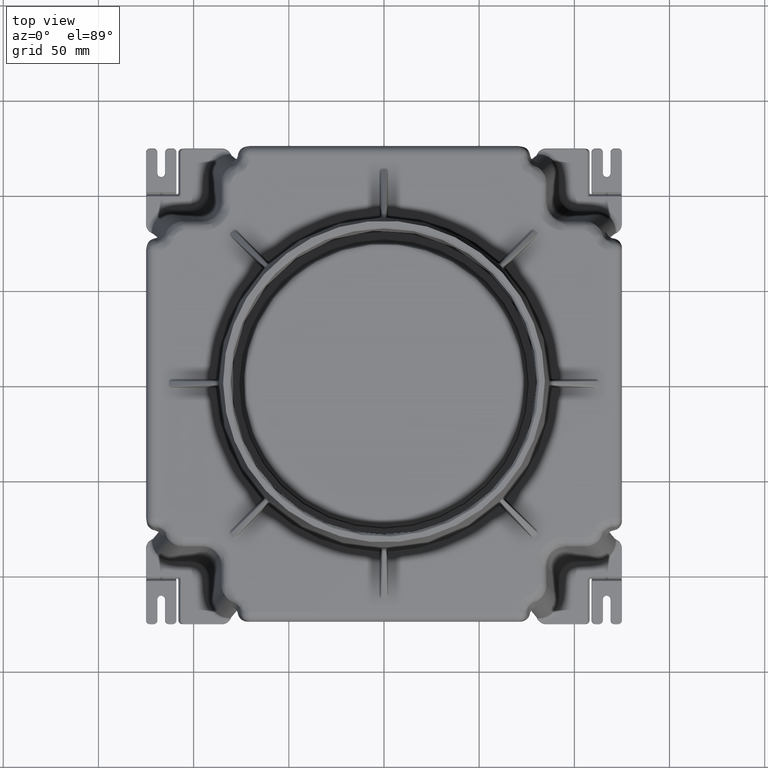
[diagram: clean part render]
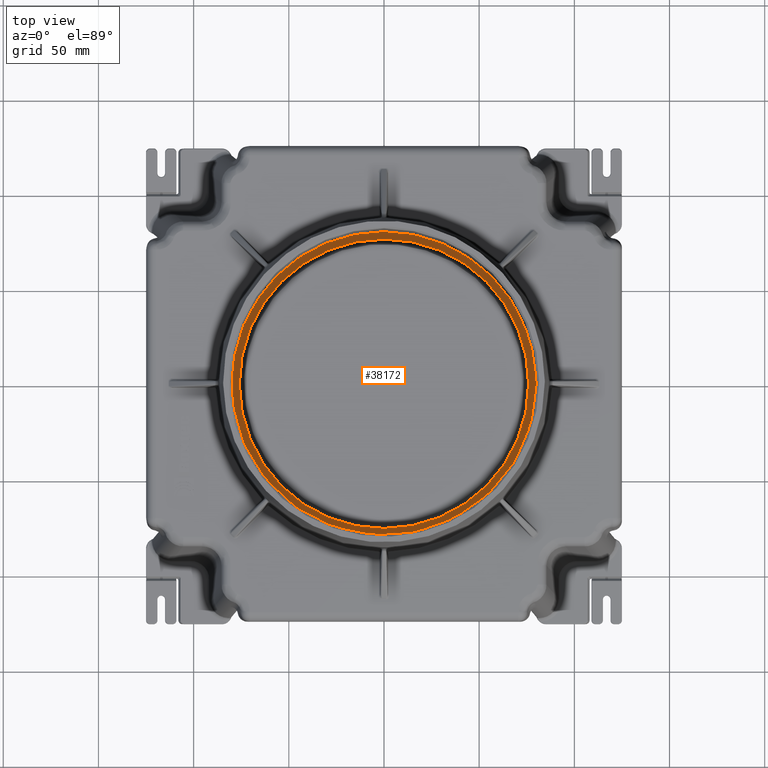
[diagram: same view with one face highlighted and labeled with its STEP entity id]
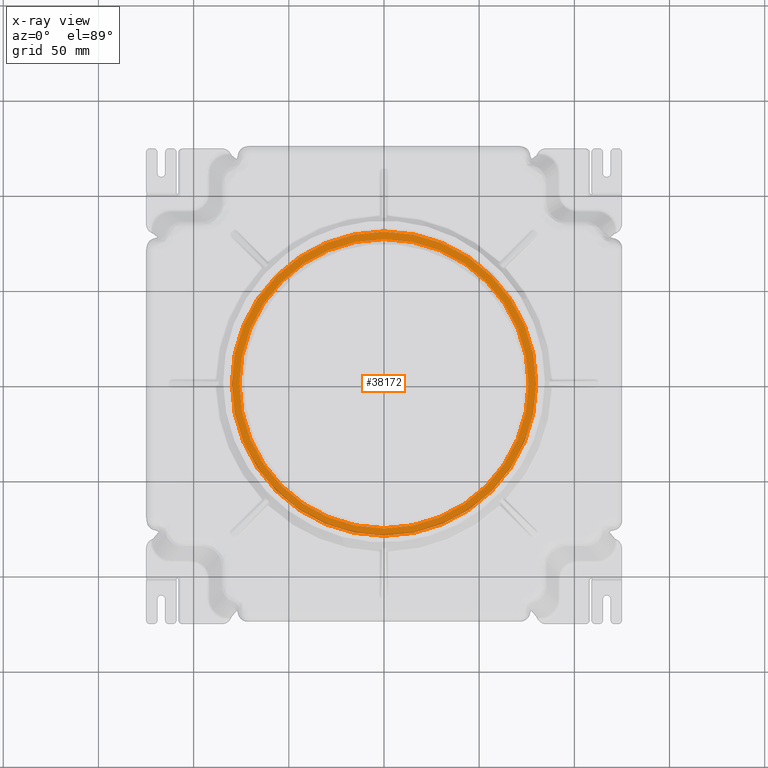
[diagram: x-ray of the same camera — body ghosted, the highlighted face saturated]
A machine part, top view. The second image highlights one B-rep face of the part: STEP entity #38172.
The next image is the same camera in x-ray: the body ghosted, the highlighted face saturated — about 6% of this face is hidden behind the body in this view.
In plain terms, the highlighted planar face has unit normal (0, 0, 1).
Its self-contained STEP definition (entity closure, byte-faithful):
#38091=CARTESIAN_POINT('',(-76.000000000000028,-5.205472E-016,0.0));
#38092=VERTEX_POINT('',#38091);
#38093=CARTESIAN_POINT('',(0.0,0.0,0.0));
#38094=DIRECTION('',(0.0,0.0,-1.0));
#38095=DIRECTION('',(1.0,0.0,0.0));
#38096=AXIS2_PLACEMENT_3D('',#38093,#38094,#38095);
#38097=CIRCLE('',#38096,76.000000000000028);
#38098=EDGE_CURVE('',#38092,#38092,#38097,.T.);
#38153=CARTESIAN_POINT('',(0.0,0.0,0.0));
#38154=DIRECTION('',(0.0,0.0,1.0));
#38155=DIRECTION('',(1.0,0.0,0.0));
#38156=AXIS2_PLACEMENT_3D('',#38153,#38154,#38155);
#38157=PLANE('',#38156);
#38158=CARTESIAN_POINT('',(79.906572990228412,-9.785733E-015,0.0));
#38159=VERTEX_POINT('',#38158);
#38160=CARTESIAN_POINT('',(0.0,0.0,0.0));
#38161=DIRECTION('',(0.0,0.0,-1.0));
#38162=DIRECTION('',(-1.0,0.0,0.0));
#38163=AXIS2_PLACEMENT_3D('',#38160,#38161,#38162);
#38164=CIRCLE('',#38163,79.906572990228412);
#38165=EDGE_CURVE('',#38159,#38159,#38164,.F.);
#38166=ORIENTED_EDGE('',*,*,#38165,.T.);
#38167=EDGE_LOOP('',(#38166));
#38168=FACE_OUTER_BOUND('',#38167,.T.);
#38169=ORIENTED_EDGE('',*,*,#38098,.T.);
#38170=EDGE_LOOP('',(#38169));
#38171=FACE_BOUND('',#38170,.T.);
#38172=ADVANCED_FACE('',(#38168,#38171),#38157,.T.);